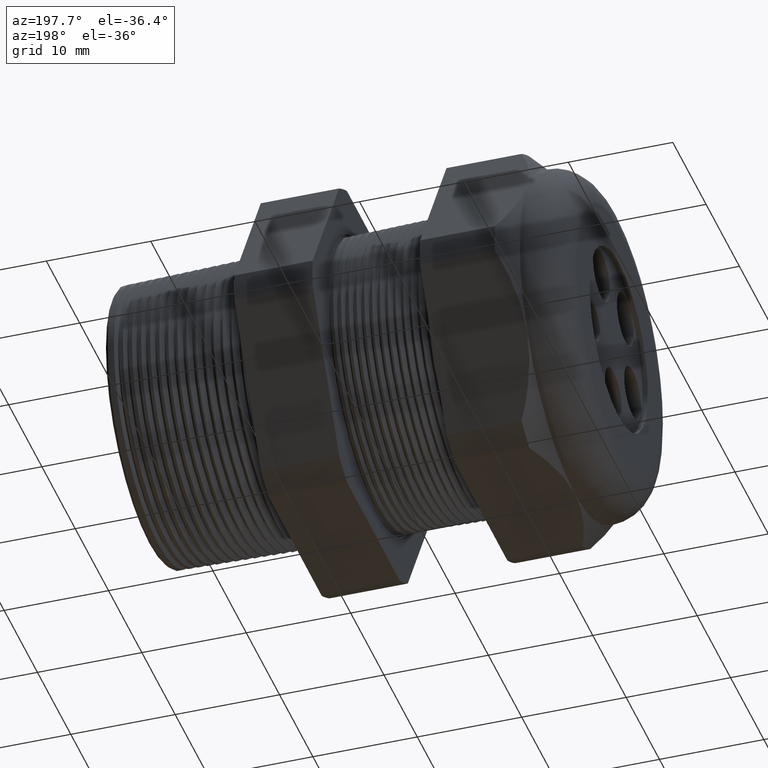
[diagram: clean part render]
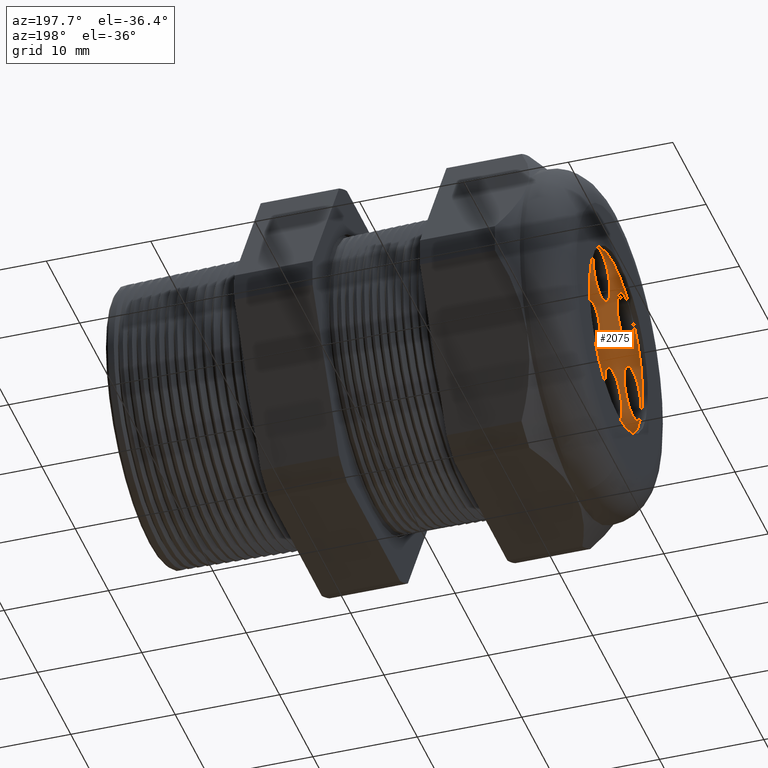
[diagram: same view with one face highlighted and labeled with its STEP entity id]
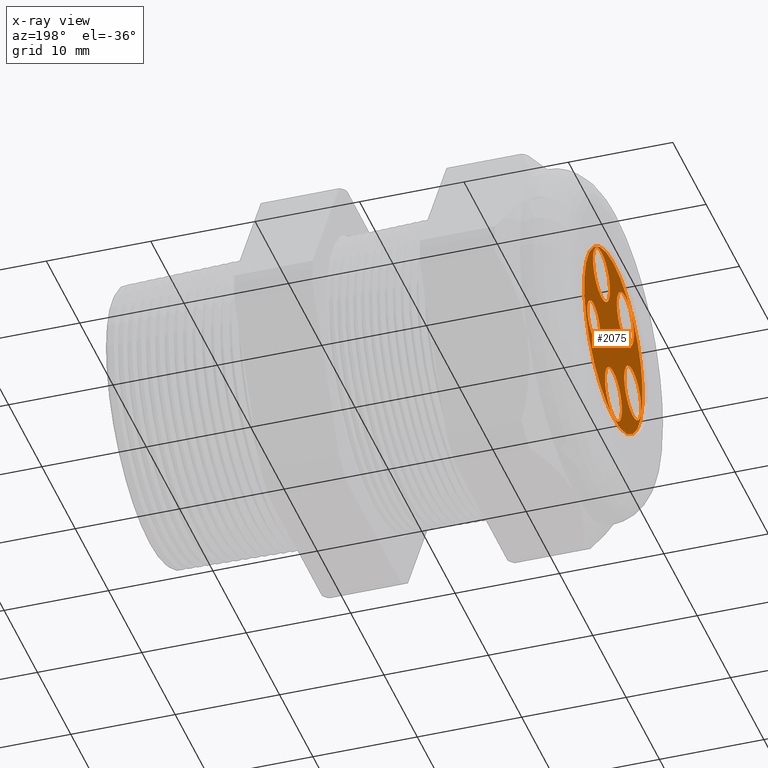
[diagram: x-ray of the same camera — body ghosted, the highlighted face saturated]
A machine part, auxiliary view. The second image highlights one B-rep face of the part: STEP entity #2075.
The next image is the same camera in x-ray: the body ghosted, the highlighted face saturated — about 0% of this face is hidden behind the body in this view.
In plain terms, the highlighted planar face has unit normal (-1, 0, 0).
Its self-contained STEP definition (entity closure, byte-faithful):
#1888 = VERTEX_POINT ( 'NONE', #5521 ) ;
#1890 = EDGE_CURVE ( 'NONE', #1888, #1891, #5520, .T. ) ;
#1891 = VERTEX_POINT ( 'NONE', #5515 ) ;
#1906 = VERTEX_POINT ( 'NONE', #5548 ) ;
#1908 = EDGE_CURVE ( 'NONE', #1906, #1909, #5610, .T. ) ;
#1909 = VERTEX_POINT ( 'NONE', #5605 ) ;
#1927 = EDGE_CURVE ( 'NONE', #1928, #1929, #5587, .T. ) ;
#1928 = VERTEX_POINT ( 'NONE', #5582 ) ;
#1929 = VERTEX_POINT ( 'NONE', #5581 ) ;
#1935 = VERTEX_POINT ( 'NONE', #5635 ) ;
#1937 = EDGE_CURVE ( 'NONE', #1935, #1938, #5634, .T. ) ;
#1938 = VERTEX_POINT ( 'NONE', #5629 ) ;
#1951 = VERTEX_POINT ( 'NONE', #5665 ) ;
#1953 = EDGE_CURVE ( 'NONE', #1951, #1954, #5664, .T. ) ;
#1954 = VERTEX_POINT ( 'NONE', #5659 ) ;
#2002 = VERTEX_POINT ( 'NONE', #5761 ) ;
#2004 = EDGE_CURVE ( 'NONE', #2002, #2005, #5760, .T. ) ;
#2005 = VERTEX_POINT ( 'NONE', #5755 ) ;
#2009 = EDGE_LOOP ( 'NONE', ( #2010, #2061 ) ) ;
#2010 = ORIENTED_EDGE ( 'NONE', *, *, #2060, .F. ) ;
#2023 = EDGE_CURVE ( 'NONE', #1929, #1928, #5787, .T. ) ;
#2060 = EDGE_CURVE ( 'NONE', #1954, #1951, #5866, .T. ) ;
#2061 = ORIENTED_EDGE ( 'NONE', *, *, #1953, .F. ) ;
#2062 = EDGE_LOOP ( 'NONE', ( #2063, #2065 ) ) ;
#2063 = ORIENTED_EDGE ( 'NONE', *, *, #2064, .F. ) ;
#2064 = EDGE_CURVE ( 'NONE', #1938, #1935, #5861, .T. ) ;
#2065 = ORIENTED_EDGE ( 'NONE', *, *, #1937, .F. ) ;
#2066 = EDGE_LOOP ( 'NONE', ( #2067, #2069 ) ) ;
#2067 = ORIENTED_EDGE ( 'NONE', *, *, #2068, .F. ) ;
#2068 = EDGE_CURVE ( 'NONE', #2005, #2002, #5856, .T. ) ;
#2069 = ORIENTED_EDGE ( 'NONE', *, *, #2004, .F. ) ;
#2070 = EDGE_LOOP ( 'NONE', ( #2071, #2072 ) ) ;
#2071 = ORIENTED_EDGE ( 'NONE', *, *, #2023, .T. ) ;
#2072 = ORIENTED_EDGE ( 'NONE', *, *, #1927, .T. ) ;
#2075 = ADVANCED_FACE ( 'NONE', ( #5851, #5850, #5849, #5848, #5847, #5846 ), #5845, .T. ) ;
#2076 = EDGE_LOOP ( 'NONE', ( #2077, #2079 ) ) ;
#2077 = ORIENTED_EDGE ( 'NONE', *, *, #2078, .F. ) ;
#2078 = EDGE_CURVE ( 'NONE', #1909, #1906, #5840, .T. ) ;
#2079 = ORIENTED_EDGE ( 'NONE', *, *, #1908, .F. ) ;
#2080 = EDGE_LOOP ( 'NONE', ( #2081, #2083 ) ) ;
#2081 = ORIENTED_EDGE ( 'NONE', *, *, #2082, .F. ) ;
#2082 = EDGE_CURVE ( 'NONE', #1891, #1888, #5899, .T. ) ;
#2083 = ORIENTED_EDGE ( 'NONE', *, *, #1890, .F. ) ;
#5515 = CARTESIAN_POINT ( 'NONE',  ( -1.509999999999999800, 0.1410684605501952000, 0.2941640786499860600 ) ) ;
#5516 = DIRECTION ( 'NONE',  ( 0.0000000000000000000, -0.5877852522924802400, -0.8090169943749422300 ) ) ;
#5517 = DIRECTION ( 'NONE',  ( -1.000000000000000000, 0.0000000000000000000, 0.0000000000000000000 ) ) ;
#5518 = CARTESIAN_POINT ( 'NONE',  ( -1.509999999999999800, 0.1410684605501952000, 0.1941640786499860800 ) ) ;
#5519 = AXIS2_PLACEMENT_3D ( 'NONE', #5518, #5517, #5516 ) ;
#5520 = CIRCLE ( 'NONE', #5519, 0.1000000000000000200 ) ;
#5521 = CARTESIAN_POINT ( 'NONE',  ( -1.509999999999999800, 0.1410684605501952300, 0.09416407864998609100 ) ) ;
#5548 = CARTESIAN_POINT ( 'NONE',  ( -1.509999999999999800, 0.2330088464923122700, -0.1507091636218631800 ) ) ;
#5581 = CARTESIAN_POINT ( 'NONE',  ( -1.509999999999999800, 0.0000000000000000000, 0.3449999999999999200 ) ) ;
#5582 = CARTESIAN_POINT ( 'NONE',  ( -1.509999999999999800, 4.225031457058367800E-017, -0.3449999999999999200 ) ) ;
#5583 = DIRECTION ( 'NONE',  ( 0.0000000000000000000, 0.0000000000000000000, 1.000000000000000000 ) ) ;
#5584 = DIRECTION ( 'NONE',  ( -1.000000000000000000, 0.0000000000000000000, 0.0000000000000000000 ) ) ;
#5585 = CARTESIAN_POINT ( 'NONE',  ( -1.509999999999999800, 0.0000000000000000000, 0.0000000000000000000 ) ) ;
#5586 = AXIS2_PLACEMENT_3D ( 'NONE', #5585, #5584, #5583 ) ;
#5587 = CIRCLE ( 'NONE', #5586, 0.3449999999999999200 ) ;
#5605 = CARTESIAN_POINT ( 'NONE',  ( -1.509999999999999800, 0.2330088464923122700, -0.0007091636218631770100 ) ) ;
#5606 = DIRECTION ( 'NONE',  ( 0.0000000000000000000, 0.0000000000000000000, 1.000000000000000000 ) ) ;
#5607 = DIRECTION ( 'NONE',  ( -1.000000000000000000, 0.0000000000000000000, 0.0000000000000000000 ) ) ;
#5608 = CARTESIAN_POINT ( 'NONE',  ( -1.509999999999999800, 0.2330088464923122700, -0.07570916362186318200 ) ) ;
#5609 = AXIS2_PLACEMENT_3D ( 'NONE', #5608, #5607, #5606 ) ;
#5610 = CIRCLE ( 'NONE', #5609, 0.07499999999999999700 ) ;
#5629 = CARTESIAN_POINT ( 'NONE',  ( -1.509999999999999800, -0.2282535639108370700, 0.02583592135001328400 ) ) ;
#5630 = DIRECTION ( 'NONE',  ( 0.0000000000000000000, 0.9510565162951543100, 0.3090169943749446800 ) ) ;
#5631 = DIRECTION ( 'NONE',  ( -1.000000000000000000, 0.0000000000000000000, 0.0000000000000000000 ) ) ;
#5632 = CARTESIAN_POINT ( 'NONE',  ( -1.509999999999999800, -0.2282535639108370700, -0.07416407864998672500 ) ) ;
#5633 = AXIS2_PLACEMENT_3D ( 'NONE', #5632, #5631, #5630 ) ;
#5634 = CIRCLE ( 'NONE', #5633, 0.1000000000000000500 ) ;
#5635 = CARTESIAN_POINT ( 'NONE',  ( -1.509999999999999800, -0.2282535639108370700, -0.1741640786499867600 ) ) ;
#5659 = CARTESIAN_POINT ( 'NONE',  ( -1.509999999999999800, -0.1410684605501924300, 0.2941640786499881100 ) ) ;
#5660 = DIRECTION ( 'NONE',  ( 0.0000000000000000000, 0.5877852522924685900, -0.8090169943749508900 ) ) ;
#5661 = DIRECTION ( 'NONE',  ( -1.000000000000000000, 0.0000000000000000000, 0.0000000000000000000 ) ) ;
#5662 = CARTESIAN_POINT ( 'NONE',  ( -1.509999999999999800, -0.1410684605501924300, 0.1941640786499881400 ) ) ;
#5663 = AXIS2_PLACEMENT_3D ( 'NONE', #5662, #5661, #5660 ) ;
#5664 = CIRCLE ( 'NONE', #5663, 0.1000000000000000100 ) ;
#5665 = CARTESIAN_POINT ( 'NONE',  ( -1.509999999999999800, -0.1410684605501924000, 0.09416407864998813100 ) ) ;
#5755 = CARTESIAN_POINT ( 'NONE',  ( -1.509999999999999800, 0.0000000000000000000, -0.1399999999999999300 ) ) ;
#5756 = DIRECTION ( 'NONE',  ( 0.0000000000000000000, 0.0000000000000000000, 1.000000000000000000 ) ) ;
#5757 = DIRECTION ( 'NONE',  ( -1.000000000000000000, 0.0000000000000000000, 0.0000000000000000000 ) ) ;
#5758 = CARTESIAN_POINT ( 'NONE',  ( -1.509999999999999800, 0.0000000000000000000, -0.2399999999999999400 ) ) ;
#5759 = AXIS2_PLACEMENT_3D ( 'NONE', #5758, #5757, #5756 ) ;
#5760 = CIRCLE ( 'NONE', #5759, 0.1000000000000000100 ) ;
#5761 = CARTESIAN_POINT ( 'NONE',  ( -1.509999999999999800, 1.224646799147353600E-017, -0.3399999999999999100 ) ) ;
#5784 = DIRECTION ( 'NONE',  ( 0.0000000000000000000, 0.0000000000000000000, 1.000000000000000000 ) ) ;
#5785 = DIRECTION ( 'NONE',  ( -1.000000000000000000, 0.0000000000000000000, 0.0000000000000000000 ) ) ;
#5786 = AXIS2_PLACEMENT_3D ( 'NONE', #5792, #5785, #5784 ) ;
#5787 = CIRCLE ( 'NONE', #5786, 0.3449999999999999200 ) ;
#5792 = CARTESIAN_POINT ( 'NONE',  ( -1.509999999999999800, 0.0000000000000000000, 0.0000000000000000000 ) ) ;
#5835 = CARTESIAN_POINT ( 'NONE',  ( -1.509999999999999800, 0.1410684605501952000, 0.1941640786499860800 ) ) ;
#5836 = DIRECTION ( 'NONE',  ( 0.0000000000000000000, 0.0000000000000000000, 1.000000000000000000 ) ) ;
#5837 = DIRECTION ( 'NONE',  ( -1.000000000000000000, 0.0000000000000000000, 0.0000000000000000000 ) ) ;
#5838 = CARTESIAN_POINT ( 'NONE',  ( -1.509999999999999800, 0.2330088464923122700, -0.07570916362186318200 ) ) ;
#5839 = AXIS2_PLACEMENT_3D ( 'NONE', #5838, #5837, #5836 ) ;
#5840 = CIRCLE ( 'NONE', #5839, 0.07499999999999999700 ) ;
#5841 = DIRECTION ( 'NONE',  ( 0.0000000000000000000, 0.0000000000000000000, 1.000000000000000000 ) ) ;
#5842 = DIRECTION ( 'NONE',  ( -1.000000000000000000, 0.0000000000000000000, 0.0000000000000000000 ) ) ;
#5843 = CARTESIAN_POINT ( 'NONE',  ( -1.509999999999999800, 0.0000000000000000000, 0.0000000000000000000 ) ) ;
#5844 = AXIS2_PLACEMENT_3D ( 'NONE', #5843, #5842, #5841 ) ;
#5845 = PLANE ( 'NONE',  #5844 ) ;
#5846 = FACE_OUTER_BOUND ( 'NONE', #2070, .T. ) ;
#5847 = FACE_BOUND ( 'NONE', #2066, .T. ) ;
#5848 = FACE_BOUND ( 'NONE', #2062, .T. ) ;
#5849 = FACE_BOUND ( 'NONE', #2009, .T. ) ;
#5850 = FACE_BOUND ( 'NONE', #2080, .T. ) ;
#5851 = FACE_BOUND ( 'NONE', #2076, .T. ) ;
#5852 = DIRECTION ( 'NONE',  ( 0.0000000000000000000, 0.0000000000000000000, 1.000000000000000000 ) ) ;
#5853 = DIRECTION ( 'NONE',  ( -1.000000000000000000, 0.0000000000000000000, 0.0000000000000000000 ) ) ;
#5854 = CARTESIAN_POINT ( 'NONE',  ( -1.509999999999999800, 0.0000000000000000000, -0.2399999999999999400 ) ) ;
#5855 = AXIS2_PLACEMENT_3D ( 'NONE', #5854, #5853, #5852 ) ;
#5856 = CIRCLE ( 'NONE', #5855, 0.1000000000000000100 ) ;
#5857 = DIRECTION ( 'NONE',  ( 0.0000000000000000000, 0.9510565162951543100, 0.3090169943749446800 ) ) ;
#5858 = DIRECTION ( 'NONE',  ( -1.000000000000000000, 0.0000000000000000000, 0.0000000000000000000 ) ) ;
#5859 = CARTESIAN_POINT ( 'NONE',  ( -1.509999999999999800, -0.2282535639108370700, -0.07416407864998672500 ) ) ;
#5860 = AXIS2_PLACEMENT_3D ( 'NONE', #5859, #5858, #5857 ) ;
#5861 = CIRCLE ( 'NONE', #5860, 0.1000000000000000500 ) ;
#5862 = DIRECTION ( 'NONE',  ( 0.0000000000000000000, 0.5877852522924685900, -0.8090169943749508900 ) ) ;
#5863 = DIRECTION ( 'NONE',  ( -1.000000000000000000, 0.0000000000000000000, 0.0000000000000000000 ) ) ;
#5864 = CARTESIAN_POINT ( 'NONE',  ( -1.509999999999999800, -0.1410684605501924300, 0.1941640786499881400 ) ) ;
#5865 = AXIS2_PLACEMENT_3D ( 'NONE', #5864, #5863, #5862 ) ;
#5866 = CIRCLE ( 'NONE', #5865, 0.1000000000000000100 ) ;
#5896 = DIRECTION ( 'NONE',  ( 0.0000000000000000000, -0.5877852522924802400, -0.8090169943749422300 ) ) ;
#5897 = DIRECTION ( 'NONE',  ( -1.000000000000000000, 0.0000000000000000000, 0.0000000000000000000 ) ) ;
#5898 = AXIS2_PLACEMENT_3D ( 'NONE', #5835, #5897, #5896 ) ;
#5899 = CIRCLE ( 'NONE', #5898, 0.1000000000000000200 ) ;